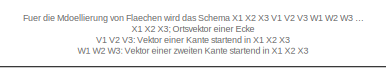
[diagram: root canvas - part 1/3, top center region]
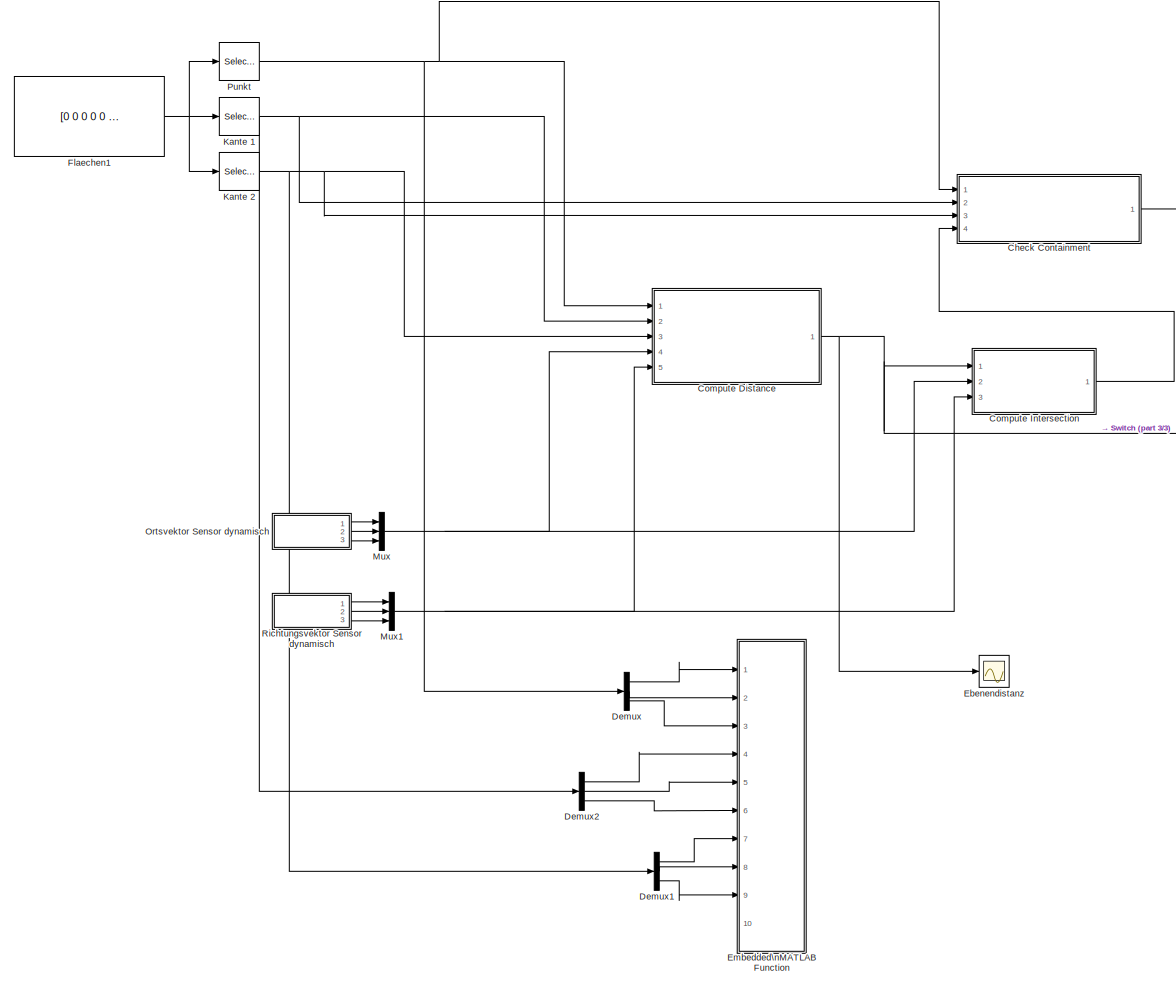
[diagram: root canvas - part 2/3, most of the canvas]
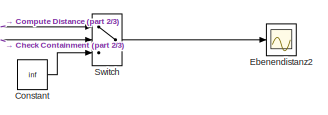
[diagram: root canvas - part 3/3, middle right region]
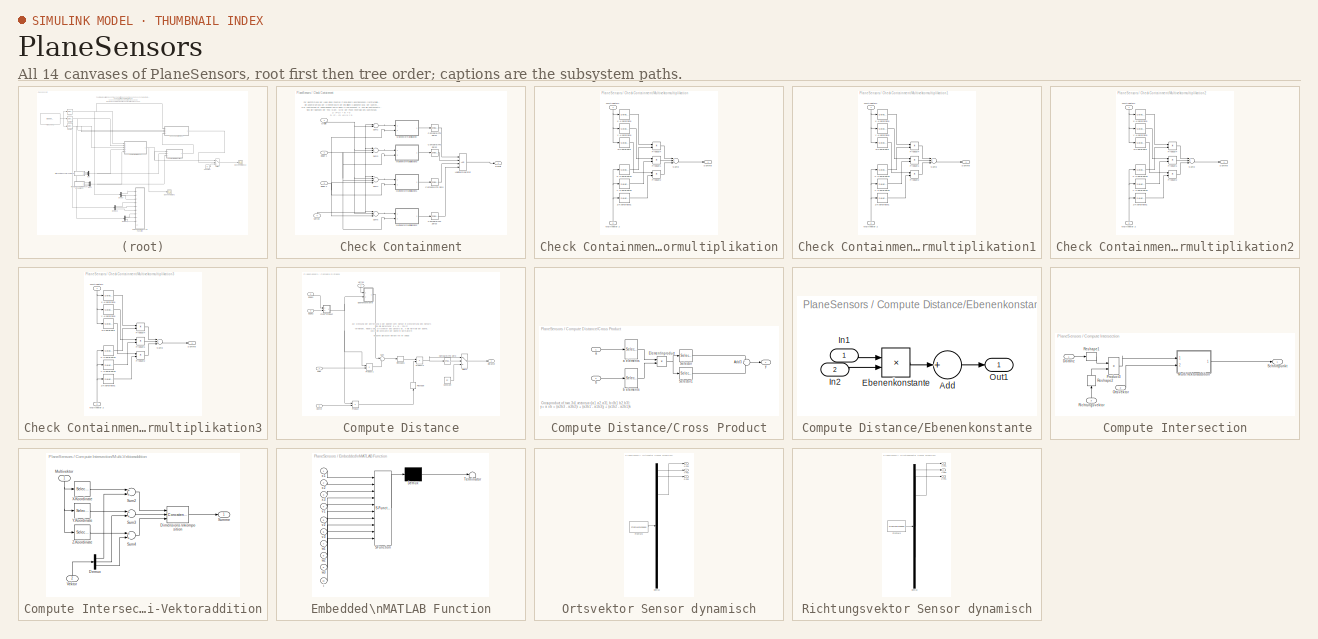
[diagram: thumbnail index - all 14 canvases of the model, root first then tree order]
MODEL PlaneSensors
KIND model
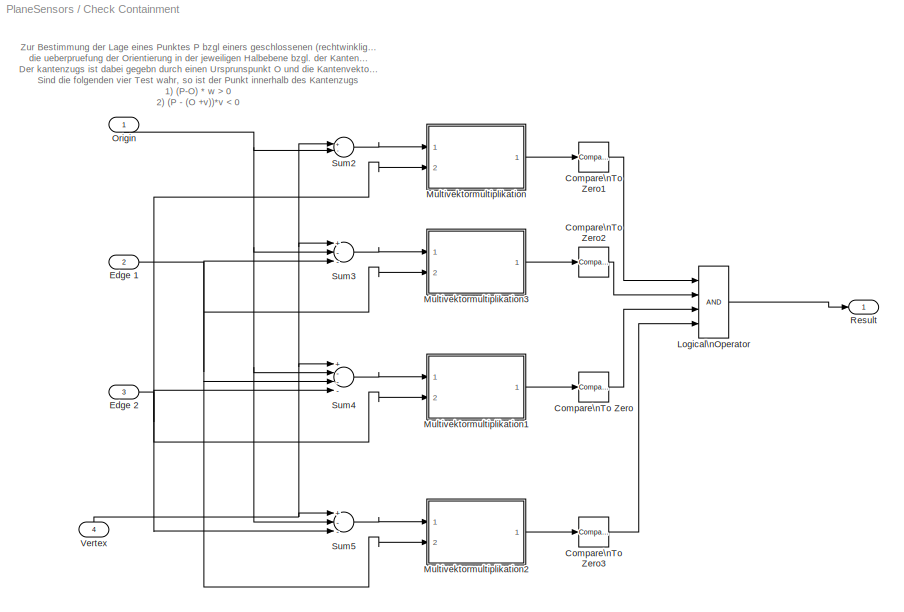
BLOCK [SubSystem] Check Containment
  FunctionWithSeparateData = off
  MaskHideContents = off
  MinAlgLoopOccurrences = off
  Opaque = off
  Ports = [4, 1]
  PropExecContextOutsideSubsystem = off
  RTWSystemCode = Auto
  RequestExecContextInheritance = off
  SID = 63
BLOCK [Reference] Check Containment/Compare\nTo Zero  REF=simulink/Logic and Bit\nOperations/Compare\nTo Zero
  FunctionWithSeparateData = off
  LogicOutDataTypeMode = uint8
  Ports = [1, 1]
  RTWMemSecDataConstants = Inherit from model
  RTWMemSecDataInternal = Inherit from model
  RTWMemSecDataParameters = Inherit from model
  RTWMemSecFuncExecute = Inherit from model
  RTWMemSecFuncInitTerm = Inherit from model
  SID = 48
  ShowPortLabels = FromPortIcon
  SourceBlock = simulink/Logic and Bit\nOperations/Compare\nTo Zero
  SourceType = Compare To Zero
  SystemSampleTime = -1
  ZeroCross = on
  relop = <
BLOCK [Reference] Check Containment/Compare\nTo Zero1  REF=simulink/Logic and Bit\nOperations/Compare\nTo Zero
  FunctionWithSeparateData = off
  LogicOutDataTypeMode = uint8
  Ports = [1, 1]
  RTWMemSecDataConstants = Inherit from model
  RTWMemSecDataInternal = Inherit from model
  RTWMemSecDataParameters = Inherit from model
  RTWMemSecFuncExecute = Inherit from model
  RTWMemSecFuncInitTerm = Inherit from model
  SID = 49
  ShowPortLabels = FromPortIcon
  SourceBlock = simulink/Logic and Bit\nOperations/Compare\nTo Zero
  SourceType = Compare To Zero
  SystemSampleTime = -1
  ZeroCross = on
  relop = >
BLOCK [Reference] Check Containment/Compare\nTo Zero2  REF=simulink/Logic and Bit\nOperations/Compare\nTo Zero
  FunctionWithSeparateData = off
  LogicOutDataTypeMode = uint8
  Ports = [1, 1]
  RTWMemSecDataConstants = Inherit from model
  RTWMemSecDataInternal = Inherit from model
  RTWMemSecDataParameters = Inherit from model
  RTWMemSecFuncExecute = Inherit from model
  RTWMemSecFuncInitTerm = Inherit from model
  SID = 50
  ShowPortLabels = FromPortIcon
  SourceBlock = simulink/Logic and Bit\nOperations/Compare\nTo Zero
  SourceType = Compare To Zero
  SystemSampleTime = -1
  ZeroCross = on
  relop = <
BLOCK [Reference] Check Containment/Compare\nTo Zero3  REF=simulink/Logic and Bit\nOperations/Compare\nTo Zero
  FunctionWithSeparateData = off
  LogicOutDataTypeMode = uint8
  Ports = [1, 1]
  RTWMemSecDataConstants = Inherit from model
  RTWMemSecDataInternal = Inherit from model
  RTWMemSecDataParameters = Inherit from model
  RTWMemSecFuncExecute = Inherit from model
  RTWMemSecFuncInitTerm = Inherit from model
  SID = 51
  ShowPortLabels = FromPortIcon
  SourceBlock = simulink/Logic and Bit\nOperations/Compare\nTo Zero
  SourceType = Compare To Zero
  SystemSampleTime = -1
  ZeroCross = on
  relop = >
BLOCK [Inport] Check Containment/Edge 1
  IconDisplay = Port number
  Port = 2
  SID = 66
BLOCK [Inport] Check Containment/Edge 2
  IconDisplay = Port number
  Port = 3
  SID = 67
BLOCK [Logic] Check Containment/Logical\nOperator
  AllPortsSameDT = off
  Inputs = 4
  LogicDataType = fixdt(0, 8)
  OutDataTypeMode = boolean
  OutDataTypeStr = boolean
  Ports = [4, 1]
  SID = 52
BLOCK [SubSystem] Check Containment/Multivektormultiplikation
  FunctionWithSeparateData = off
  MaskHideContents = off
  MinAlgLoopOccurrences = off
  Opaque = off
  Ports = [2, 1]
  PropExecContextOutsideSubsystem = off
  RTWSystemCode = Auto
  RequestExecContextInheritance = off
  SID = 172
BLOCK [Inport] Check Containment/Multivektormultiplikation/Mulitvektor 2
  IconDisplay = Port number
  Port = 2
  SID = 174
BLOCK [Inport] Check Containment/Multivektormultiplikation/Multivektor1
  IconDisplay = Port number
  SID = 173
BLOCK [Product] Check Containment/Multivektormultiplikation/Product1
  InputSameDT = off
  OutDataType = fixdt(1, 16)
  OutDataTypeMode = Inherit via internal rule
  OutDataTypeStr = Inherit: Inherit via internal rule
  OutScaling = 2^0
  Ports = [2, 1]
  SID = 189
  SaturateOnIntegerOverflow = off
BLOCK [Product] Check Containment/Multivektormultiplikation/Product2
  InputSameDT = off
  OutDataType = fixdt(1, 16)
  OutDataTypeMode = Inherit via internal rule
  OutDataTypeStr = Inherit: Inherit via internal rule
  OutScaling = 2^0
  Ports = [2, 1]
  SID = 190
  SaturateOnIntegerOverflow = off
BLOCK [Product] Check Containment/Multivektormultiplikation/Product4
  InputSameDT = off
  OutDataType = fixdt(1, 16)
  OutDataTypeMode = Inherit via internal rule
  OutDataTypeStr = Inherit: Inherit via internal rule
  OutScaling = 2^0
  Ports = [2, 1]
  SID = 188
  SaturateOnIntegerOverflow = off
BLOCK [Sum] Check Containment/Multivektormultiplikation/Sum3
  InputSameDT = off
  Inputs = 3
  OutDataType = fixdt(1, 16)
  OutDataTypeMode = Inherit via internal rule
  OutDataTypeStr = Inherit: Inherit via internal rule
  OutScaling = 2^0
  Ports = [3, 1]
  SID = 178
  SaturateOnIntegerOverflow = off
BLOCK [Outport] Check Containment/Multivektormultiplikation/Summe
  IconDisplay = Port number
  SID = 183
BLOCK [Selector] Check Containment/Multivektormultiplikation/X-Koordinate
  IndexOptions = Select all,Index vector (dialog)
  Indices = [1],[1]
  InputPortWidth = 3
  NumberOfDimensions = 2
  OutputSizes = 1,1
  Ports = [1, 1]
  SID = 180
BLOCK [Selector] Check Containment/Multivektormultiplikation/X-Koordinate1
  IndexOptions = Select all,Index vector (dialog)
  Indices = [1],[1]
  InputPortWidth = 3
  NumberOfDimensions = 2
  OutputSizes = 1,1
  Ports = [1, 1]
  SID = 184
BLOCK [Selector] Check Containment/Multivektormultiplikation/Y-Koordinate
  IndexOptions = Select all,Index vector (dialog)
  Indices = [2],[2]
  InputPortWidth = 3
  NumberOfDimensions = 2
  OutputSizes = 1,1
  Ports = [1, 1]
  SID = 181
BLOCK [Selector] Check Containment/Multivektormultiplikation/Y-Koordinate1
  IndexOptions = Select all,Index vector (dialog)
  Indices = [2],[2]
  InputPortWidth = 3
  NumberOfDimensions = 2
  OutputSizes = 1,1
  Ports = [1, 1]
  SID = 185
BLOCK [Selector] Check Containment/Multivektormultiplikation/Z-Koordinate
  IndexOptions = Select all,Index vector (dialog)
  Indices = [3],[3]
  InputPortWidth = 3
  NumberOfDimensions = 2
  OutputSizes = 1,1
  Ports = [1, 1]
  SID = 182
BLOCK [Selector] Check Containment/Multivektormultiplikation/Z-Koordinate1
  IndexOptions = Select all,Index vector (dialog)
  Indices = [3],[3]
  InputPortWidth = 3
  NumberOfDimensions = 2
  OutputSizes = 1,1
  Ports = [1, 1]
  SID = 186
BLOCK [SubSystem] Check Containment/Multivektormultiplikation1
  FunctionWithSeparateData = off
  MaskHideContents = off
  MinAlgLoopOccurrences = off
  Opaque = off
  Ports = [2, 1]
  PropExecContextOutsideSubsystem = off
  RTWSystemCode = Auto
  RequestExecContextInheritance = off
  SID = 191
BLOCK [Inport] Check Containment/Multivektormultiplikation1/Mulitvektor 2
  IconDisplay = Port number
  Port = 2
  SID = 193
BLOCK [Inport] Check Containment/Multivektormultiplikation1/Multivektor1
  IconDisplay = Port number
  SID = 192
BLOCK [Product] Check Containment/Multivektormultiplikation1/Product1
  InputSameDT = off
  OutDataType = fixdt(1, 16)
  OutDataTypeMode = Inherit via internal rule
  OutDataTypeStr = Inherit: Inherit via internal rule
  OutScaling = 2^0
  Ports = [2, 1]
  SID = 194
  SaturateOnIntegerOverflow = off
BLOCK [Product] Check Containment/Multivektormultiplikation1/Product2
  InputSameDT = off
  OutDataType = fixdt(1, 16)
  OutDataTypeMode = Inherit via internal rule
  OutDataTypeStr = Inherit: Inherit via internal rule
  OutScaling = 2^0
  Ports = [2, 1]
  SID = 195
  SaturateOnIntegerOverflow = off
BLOCK [Product] Check Containment/Multivektormultiplikation1/Product4
  InputSameDT = off
  OutDataType = fixdt(1, 16)
  OutDataTypeMode = Inherit via internal rule
  OutDataTypeStr = Inherit: Inherit via internal rule
  OutScaling = 2^0
  Ports = [2, 1]
  SID = 196
  SaturateOnIntegerOverflow = off
BLOCK [Sum] Check Containment/Multivektormultiplikation1/Sum3
  InputSameDT = off
  Inputs = 3
  OutDataType = fixdt(1, 16)
  OutDataTypeMode = Inherit via internal rule
  OutDataTypeStr = Inherit: Inherit via internal rule
  OutScaling = 2^0
  Ports = [3, 1]
  SID = 197
  SaturateOnIntegerOverflow = off
BLOCK [Outport] Check Containment/Multivektormultiplikation1/Summe
  IconDisplay = Port number
  SID = 204
BLOCK [Selector] Check Containment/Multivektormultiplikation1/X-Koordinate
  IndexOptions = Select all,Index vector (dialog)
  Indices = [1],[1]
  InputPortWidth = 3
  NumberOfDimensions = 2
  OutputSizes = 1,1
  Ports = [1, 1]
  SID = 198
BLOCK [Selector] Check Containment/Multivektormultiplikation1/X-Koordinate1
  IndexOptions = Select all,Index vector (dialog)
  Indices = [1],[1]
  InputPortWidth = 3
  NumberOfDimensions = 2
  OutputSizes = 1,1
  Ports = [1, 1]
  SID = 199
BLOCK [Selector] Check Containment/Multivektormultiplikation1/Y-Koordinate
  IndexOptions = Select all,Index vector (dialog)
  Indices = [2],[2]
  InputPortWidth = 3
  NumberOfDimensions = 2
  OutputSizes = 1,1
  Ports = [1, 1]
  SID = 200
BLOCK [Selector] Check Containment/Multivektormultiplikation1/Y-Koordinate1
  IndexOptions = Select all,Index vector (dialog)
  Indices = [2],[2]
  InputPortWidth = 3
  NumberOfDimensions = 2
  OutputSizes = 1,1
  Ports = [1, 1]
  SID = 201
BLOCK [Selector] Check Containment/Multivektormultiplikation1/Z-Koordinate
  IndexOptions = Select all,Index vector (dialog)
  Indices = [3],[3]
  InputPortWidth = 3
  NumberOfDimensions = 2
  OutputSizes = 1,1
  Ports = [1, 1]
  SID = 202
BLOCK [Selector] Check Containment/Multivektormultiplikation1/Z-Koordinate1
  IndexOptions = Select all,Index vector (dialog)
  Indices = [3],[3]
  InputPortWidth = 3
  NumberOfDimensions = 2
  OutputSizes = 1,1
  Ports = [1, 1]
  SID = 203
BLOCK [SubSystem] Check Containment/Multivektormultiplikation2
  FunctionWithSeparateData = off
  MaskHideContents = off
  MinAlgLoopOccurrences = off
  Opaque = off
  Ports = [2, 1]
  PropExecContextOutsideSubsystem = off
  RTWSystemCode = Auto
  RequestExecContextInheritance = off
  SID = 205
BLOCK [Inport] Check Containment/Multivektormultiplikation2/Mulitvektor 2
  IconDisplay = Port number
  Port = 2
  SID = 207
BLOCK [Inport] Check Containment/Multivektormultiplikation2/Multivektor1
  IconDisplay = Port number
  SID = 206
BLOCK [Product] Check Containment/Multivektormultiplikation2/Product1
  InputSameDT = off
  OutDataType = fixdt(1, 16)
  OutDataTypeMode = Inherit via internal rule
  OutDataTypeStr = Inherit: Inherit via internal rule
  OutScaling = 2^0
  Ports = [2, 1]
  SID = 208
  SaturateOnIntegerOverflow = off
BLOCK [Product] Check Containment/Multivektormultiplikation2/Product2
  InputSameDT = off
  OutDataType = fixdt(1, 16)
  OutDataTypeMode = Inherit via internal rule
  OutDataTypeStr = Inherit: Inherit via internal rule
  OutScaling = 2^0
  Ports = [2, 1]
  SID = 209
  SaturateOnIntegerOverflow = off
BLOCK [Product] Check Containment/Multivektormultiplikation2/Product4
  InputSameDT = off
  OutDataType = fixdt(1, 16)
  OutDataTypeMode = Inherit via internal rule
  OutDataTypeStr = Inherit: Inherit via internal rule
  OutScaling = 2^0
  Ports = [2, 1]
  SID = 210
  SaturateOnIntegerOverflow = off
BLOCK [Sum] Check Containment/Multivektormultiplikation2/Sum3
  InputSameDT = off
  Inputs = 3
  OutDataType = fixdt(1, 16)
  OutDataTypeMode = Inherit via internal rule
  OutDataTypeStr = Inherit: Inherit via internal rule
  OutScaling = 2^0
  Ports = [3, 1]
  SID = 211
  SaturateOnIntegerOverflow = off
BLOCK [Outport] Check Containment/Multivektormultiplikation2/Summe
  IconDisplay = Port number
  SID = 218
BLOCK [Selector] Check Containment/Multivektormultiplikation2/X-Koordinate
  IndexOptions = Select all,Index vector (dialog)
  Indices = [1],[1]
  InputPortWidth = 3
  NumberOfDimensions = 2
  OutputSizes = 1,1
  Ports = [1, 1]
  SID = 212
BLOCK [Selector] Check Containment/Multivektormultiplikation2/X-Koordinate1
  IndexOptions = Select all,Index vector (dialog)
  Indices = [1],[1]
  InputPortWidth = 3
  NumberOfDimensions = 2
  OutputSizes = 1,1
  Ports = [1, 1]
  SID = 213
BLOCK [Selector] Check Containment/Multivektormultiplikation2/Y-Koordinate
  IndexOptions = Select all,Index vector (dialog)
  Indices = [2],[2]
  InputPortWidth = 3
  NumberOfDimensions = 2
  OutputSizes = 1,1
  Ports = [1, 1]
  SID = 214
BLOCK [Selector] Check Containment/Multivektormultiplikation2/Y-Koordinate1
  IndexOptions = Select all,Index vector (dialog)
  Indices = [2],[2]
  InputPortWidth = 3
  NumberOfDimensions = 2
  OutputSizes = 1,1
  Ports = [1, 1]
  SID = 215
BLOCK [Selector] Check Containment/Multivektormultiplikation2/Z-Koordinate
  IndexOptions = Select all,Index vector (dialog)
  Indices = [3],[3]
  InputPortWidth = 3
  NumberOfDimensions = 2
  OutputSizes = 1,1
  Ports = [1, 1]
  SID = 216
BLOCK [Selector] Check Containment/Multivektormultiplikation2/Z-Koordinate1
  IndexOptions = Select all,Index vector (dialog)
  Indices = [3],[3]
  InputPortWidth = 3
  NumberOfDimensions = 2
  OutputSizes = 1,1
  Ports = [1, 1]
  SID = 217
BLOCK [SubSystem] Check Containment/Multivektormultiplikation3
  FunctionWithSeparateData = off
  MaskHideContents = off
  MinAlgLoopOccurrences = off
  Opaque = off
  Ports = [2, 1]
  PropExecContextOutsideSubsystem = off
  RTWSystemCode = Auto
  RequestExecContextInheritance = off
  SID = 219
BLOCK [Inport] Check Containment/Multivektormultiplikation3/Mulitvektor 2
  IconDisplay = Port number
  Port = 2
  SID = 221
BLOCK [Inport] Check Containment/Multivektormultiplikation3/Multivektor1
  IconDisplay = Port number
  SID = 220
BLOCK [Product] Check Containment/Multivektormultiplikation3/Product1
  InputSameDT = off
  OutDataType = fixdt(1, 16)
  OutDataTypeMode = Inherit via internal rule
  OutDataTypeStr = Inherit: Inherit via internal rule
  OutScaling = 2^0
  Ports = [2, 1]
  SID = 222
  SaturateOnIntegerOverflow = off
BLOCK [Product] Check Containment/Multivektormultiplikation3/Product2
  InputSameDT = off
  OutDataType = fixdt(1, 16)
  OutDataTypeMode = Inherit via internal rule
  OutDataTypeStr = Inherit: Inherit via internal rule
  OutScaling = 2^0
  Ports = [2, 1]
  SID = 223
  SaturateOnIntegerOverflow = off
BLOCK [Product] Check Containment/Multivektormultiplikation3/Product4
  InputSameDT = off
  OutDataType = fixdt(1, 16)
  OutDataTypeMode = Inherit via internal rule
  OutDataTypeStr = Inherit: Inherit via internal rule
  OutScaling = 2^0
  Ports = [2, 1]
  SID = 224
  SaturateOnIntegerOverflow = off
BLOCK [Sum] Check Containment/Multivektormultiplikation3/Sum3
  InputSameDT = off
  Inputs = 3
  OutDataType = fixdt(1, 16)
  OutDataTypeMode = Inherit via internal rule
  OutDataTypeStr = Inherit: Inherit via internal rule
  OutScaling = 2^0
  Ports = [3, 1]
  SID = 225
  SaturateOnIntegerOverflow = off
BLOCK [Outport] Check Containment/Multivektormultiplikation3/Summe
  IconDisplay = Port number
  SID = 232
BLOCK [Selector] Check Containment/Multivektormultiplikation3/X-Koordinate
  IndexOptions = Select all,Index vector (dialog)
  Indices = [1],[1]
  InputPortWidth = 3
  NumberOfDimensions = 2
  OutputSizes = 1,1
  Ports = [1, 1]
  SID = 226
BLOCK [Selector] Check Containment/Multivektormultiplikation3/X-Koordinate1
  IndexOptions = Select all,Index vector (dialog)
  Indices = [1],[1]
  InputPortWidth = 3
  NumberOfDimensions = 2
  OutputSizes = 1,1
  Ports = [1, 1]
  SID = 227
BLOCK [Selector] Check Containment/Multivektormultiplikation3/Y-Koordinate
  IndexOptions = Select all,Index vector (dialog)
  Indices = [2],[2]
  InputPortWidth = 3
  NumberOfDimensions = 2
  OutputSizes = 1,1
  Ports = [1, 1]
  SID = 228
BLOCK [Selector] Check Containment/Multivektormultiplikation3/Y-Koordinate1
  IndexOptions = Select all,Index vector (dialog)
  Indices = [2],[2]
  InputPortWidth = 3
  NumberOfDimensions = 2
  OutputSizes = 1,1
  Ports = [1, 1]
  SID = 229
BLOCK [Selector] Check Containment/Multivektormultiplikation3/Z-Koordinate
  IndexOptions = Select all,Index vector (dialog)
  Indices = [3],[3]
  InputPortWidth = 3
  NumberOfDimensions = 2
  OutputSizes = 1,1
  Ports = [1, 1]
  SID = 230
BLOCK [Selector] Check Containment/Multivektormultiplikation3/Z-Koordinate1
  IndexOptions = Select all,Index vector (dialog)
  Indices = [3],[3]
  InputPortWidth = 3
  NumberOfDimensions = 2
  OutputSizes = 1,1
  Ports = [1, 1]
  SID = 231
BLOCK [Inport] Check Containment/Origin
  IconDisplay = Port number
  SID = 64
BLOCK [Outport] Check Containment/Result
  IconDisplay = Port number
  SID = 65
BLOCK [Sum] Check Containment/Sum2
  InputSameDT = off
  Inputs = +-
  OutDataType = fixdt(1, 16)
  OutDataTypeMode = Inherit via internal rule
  OutDataTypeStr = Inherit: Inherit via internal rule
  OutScaling = 2^0
  Ports = [2, 1]
  SID = 40
  SaturateOnIntegerOverflow = off
BLOCK [Sum] Check Containment/Sum3
  InputSameDT = off
  Inputs = +--
  OutDataType = fixdt(1, 16)
  OutDataTypeMode = Inherit via internal rule
  OutDataTypeStr = Inherit: Inherit via internal rule
  OutScaling = 2^0
  Ports = [3, 1]
  SID = 41
  SaturateOnIntegerOverflow = off
BLOCK [Sum] Check Containment/Sum4
  InputSameDT = off
  Inputs = +---
  OutDataType = fixdt(1, 16)
  OutDataTypeMode = Inherit via internal rule
  OutDataTypeStr = Inherit: Inherit via internal rule
  OutScaling = 2^0
  Ports = [4, 1]
  SID = 42
  SaturateOnIntegerOverflow = off
BLOCK [Sum] Check Containment/Sum5
  InputSameDT = off
  Inputs = +--
  OutDataType = fixdt(1, 16)
  OutDataTypeMode = Inherit via internal rule
  OutDataTypeStr = Inherit: Inherit via internal rule
  OutScaling = 2^0
  Ports = [3, 1]
  SID = 43
  SaturateOnIntegerOverflow = off
BLOCK [Inport] Check Containment/Vertex
  IconDisplay = Port number
  Port = 4
  SID = 68
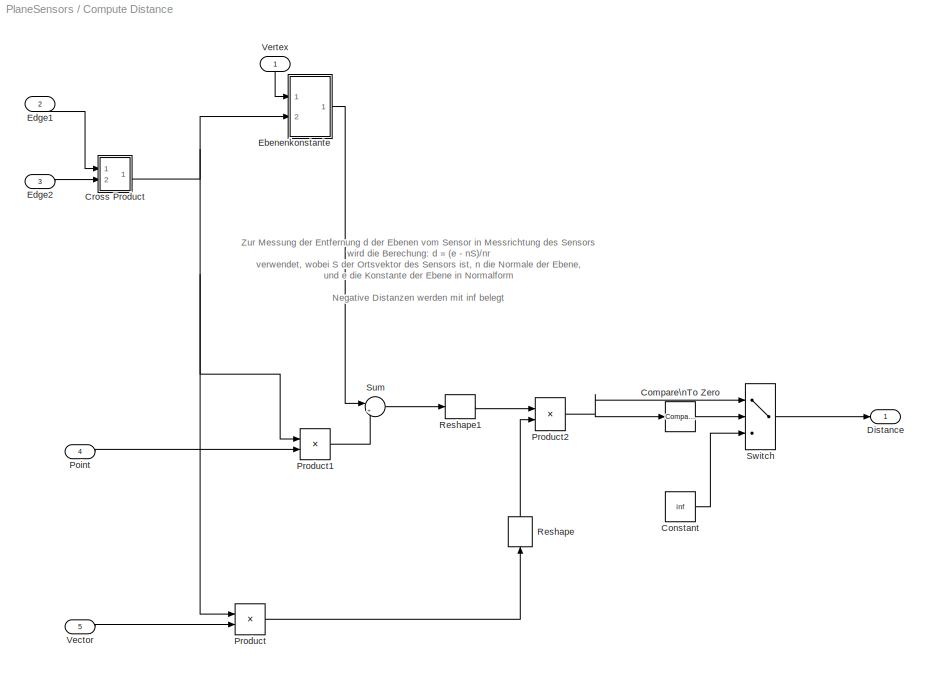
BLOCK [SubSystem] Compute Distance
  FunctionWithSeparateData = off
  MaskHideContents = off
  MinAlgLoopOccurrences = off
  Opaque = off
  Ports = [5, 1]
  PropExecContextOutsideSubsystem = off
  RTWSystemCode = Auto
  RequestExecContextInheritance = off
  SID = 79
BLOCK [Reference] Compute Distance/Compare\nTo Zero  REF=simulink/Logic and Bit\nOperations/Compare\nTo Zero
  FunctionWithSeparateData = off
  LogicOutDataTypeMode = uint8
  Ports = [1, 1]
  RTWMemSecDataConstants = Inherit from model
  RTWMemSecDataInternal = Inherit from model
  RTWMemSecDataParameters = Inherit from model
  RTWMemSecFuncExecute = Inherit from model
  RTWMemSecFuncInitTerm = Inherit from model
  SID = 237
  ShowPortLabels = FromPortIcon
  SourceBlock = simulink/Logic and Bit\nOperations/Compare\nTo Zero
  SourceType = Compare To Zero
  SystemSampleTime = -1
  ZeroCross = on
  relop = >=
BLOCK [Constant] Compute Distance/Constant
  OutDataType = fixdt(1, 16)
  OutScaling = 2^0
  SID = 235
  Value = inf
BLOCK [SubSystem] Compute Distance/Cross Product
  AncestorBlock = vrlib/Utilities/Cross Product
  FunctionWithSeparateData = off
  MaskDescription = Cross product of two 3x1 vectors a=[a1 a2 a3], b=[b1 b2 b3].\ny = a x b = (a2b3 - a3b2)i + (a3b1 - a1b3)j + (a1b2 - a2b1)k
  MaskDisplay = plot([0.2 0.8],[0.8 0.2]);\nplot([0.2 0.8],[0.2 0.8]);
  MaskHelp = helpview(fullfile(docroot, 'toolbox', 'sl3d', 'sl3d.map'), 'vr_crossproduct');
  MaskHideContents = off
  MaskIconFrame = on
  MaskIconOpaque = on
  MaskIconRotate = none
  MaskIconUnits = normalized
  MaskPortRotate = default
  MaskType = Cross Product
  MinAlgLoopOccurrences = off
  Opaque = off
  Ports = [2, 1]
  PropExecContextOutsideSubsystem = off
  RTWSystemCode = Auto
  RequestExecContextInheritance = off
  SID = 30
BLOCK [Sum] Compute Distance/Cross Product/Add3
  IconShape = round
  InputSameDT = off
  Inputs = +-
  OutDataType = sfix(16)
  OutDataTypeMode = Inherit via internal rule
  OutDataTypeStr = Inherit: Inherit via internal rule
  OutScaling = 2^-10
  Ports = [2, 1]
  SID = 9
  SaturateOnIntegerOverflow = off
BLOCK [Product] Compute Distance/Cross Product/Element\nproduct
  InputSameDT = off
  OutDataType = sfix(16)
  OutDataTypeMode = Inherit via internal rule
  OutDataTypeStr = Inherit: Inherit via internal rule
  OutScaling = 2^0
  Ports = [2, 1]
  SID = 11
  SaturateOnIntegerOverflow = off
BLOCK [Selector] Compute Distance/Cross Product/Selector
  IndexOptions = Select all,Index vector (dialog)
  Indices = [1 3],[1 2 3]
  NumberOfDimensions = 2
  OutputSizes = 1,1
  Ports = [1, 1]
  SID = 15
BLOCK [Selector] Compute Distance/Cross Product/Selector1
  IndexOptions = Select all,Index vector (dialog)
  Indices = [3 6],[4 5 6]
  NumberOfDimensions = 2
  OutputSizes = 1,1
  Ports = [1, 1]
  SID = 16
BLOCK [Inport] Compute Distance/Cross Product/a
  IconDisplay = Port number
  OutDataType = sfix(16)
  OutScaling = 2^0
  SID = 7
BLOCK [Selector] Compute Distance/Cross Product/a elements
  IndexOptions = Select all,Index vector (dialog)
  Indices = [2 3 1 3 1 2],[2 3 1 3 1 2]
  InputPortWidth = 3
  NumberOfDimensions = 2
  OutputSizes = 1,1
  Ports = [1, 1]
  SID = 12
BLOCK [Inport] Compute Distance/Cross Product/b
  IconDisplay = Port number
  OutDataType = sfix(16)
  OutScaling = 2^0
  Port = 2
  SID = 8
BLOCK [Selector] Compute Distance/Cross Product/b elements
  IndexOptions = Select all,Index vector (dialog)
  Indices = [3 1 2 2 3 1],[3 1 2 2 3 1]
  InputPortWidth = 3
  NumberOfDimensions = 2
  OutputSizes = 1,1
  Ports = [1, 1]
  SID = 13
BLOCK [Outport] Compute Distance/Cross Product/y
  IconDisplay = Port number
  OutDataType = sfix(16)
  OutScaling = 2^0
  SID = 14
BLOCK [Outport] Compute Distance/Distance
  IconDisplay = Port number
  SID = 83
BLOCK [SubSystem] Compute Distance/Ebenenkonstante
  FunctionWithSeparateData = off
  MaskHideContents = off
  MinAlgLoopOccurrences = off
  Opaque = off
  Ports = [2, 1]
  PropExecContextOutsideSubsystem = off
  RTWSystemCode = Auto
  RequestExecContextInheritance = off
  SID = 34
BLOCK [Sum] Compute Distance/Ebenenkonstante/Add
  CollapseDim = 2
  CollapseMode = Specified dimension
  InputSameDT = off
  Inputs = +
  OutDataType = fixdt(1, 16)
  OutDataTypeMode = Inherit via internal rule
  OutDataTypeStr = Inherit: Inherit via internal rule
  OutScaling = 2^-10
  Ports = [1, 1]
  SID = 33
  SaturateOnIntegerOverflow = off
BLOCK [Product] Compute Distance/Ebenenkonstante/Ebenenkonstante
  InputSameDT = off
  OutDataType = fixdt(1, 16)
  OutDataTypeMode = Inherit via internal rule
  OutDataTypeStr = Inherit: Inherit via internal rule
  OutScaling = 2^0
  Ports = [2, 1]
  SID = 21
  SaturateOnIntegerOverflow = off
BLOCK [Inport] Compute Distance/Ebenenkonstante/In1
  IconDisplay = Port number
  SID = 35
BLOCK [Inport] Compute Distance/Ebenenkonstante/In2
  IconDisplay = Port number
  Port = 2
  SID = 37
BLOCK [Outport] Compute Distance/Ebenenkonstante/Out1
  IconDisplay = Port number
  SID = 36
BLOCK [Inport] Compute Distance/Edge1
  IconDisplay = Port number
  Port = 2
  SID = 81
BLOCK [Inport] Compute Distance/Edge2
  IconDisplay = Port number
  Port = 3
  SID = 82
BLOCK [Inport] Compute Distance/Point
  IconDisplay = Port number
  Port = 4
  SID = 84
BLOCK [Product] Compute Distance/Product
  InputSameDT = off
  Multiplication = Matrix(*)
  OutDataType = fixdt(1, 16)
  OutDataTypeMode = Inherit via internal rule
  OutDataTypeStr = Inherit: Inherit via internal rule
  OutScaling = 2^0
  Ports = [2, 1]
  SID = 3
  SaturateOnIntegerOverflow = off
BLOCK [Product] Compute Distance/Product1
  InputSameDT = off
  Multiplication = Matrix(*)
  OutDataType = fixdt(1, 16)
  OutDataTypeMode = Inherit via internal rule
  OutDataTypeStr = Inherit: Inherit via internal rule
  OutScaling = 2^0
  Ports = [2, 1]
  SID = 8
  SaturateOnIntegerOverflow = off
BLOCK [Product] Compute Distance/Product2
  InputSameDT = off
  Inputs = */
  OutDataType = fixdt(1, 16)
  OutDataTypeMode = Inherit via internal rule
  OutDataTypeStr = Inherit: Inherit via internal rule
  OutScaling = 2^0
  Ports = [2, 1]
  SID = 10
  SaturateOnIntegerOverflow = off
BLOCK [Reshape] Compute Distance/Reshape
  Ports = [1, 1]
  SID = 116
BLOCK [Reshape] Compute Distance/Reshape1
  Ports = [1, 1]
  SID = 117
BLOCK [Sum] Compute Distance/Sum
  IconShape = round
  InputSameDT = off
  Inputs = |+-
  OutDataType = fixdt(1, 16)
  OutDataTypeMode = Inherit via internal rule
  OutDataTypeStr = Inherit: Inherit via internal rule
  OutScaling = 2^0
  Ports = [2, 1]
  SID = 9
  SaturateOnIntegerOverflow = off
BLOCK [Switch] Compute Distance/Switch
  Criteria = u2 ~= 0
  InputSameDT = off
  OutDataType = fixdt(1, 16)
  OutScaling = 2^0
  SID = 236
  SaturateOnIntegerOverflow = off
BLOCK [Inport] Compute Distance/Vector
  IconDisplay = Port number
  Port = 5
  SID = 85
BLOCK [Inport] Compute Distance/Vertex
  IconDisplay = Port number
  SID = 80
BLOCK [SubSystem] Compute Intersection
  FunctionWithSeparateData = off
  MaskHideContents = off
  MinAlgLoopOccurrences = off
  Opaque = off
  Ports = [3, 1]
  PropExecContextOutsideSubsystem = off
  RTWSystemCode = Auto
  RequestExecContextInheritance = off
  SID = 139
BLOCK [Inport] Compute Intersection/Distanz
  IconDisplay = Port number
  SID = 140
BLOCK [SubSystem] Compute Intersection/Multi-Vektoraddition
  FunctionWithSeparateData = off
  MaskHideContents = off
  MinAlgLoopOccurrences = off
  Opaque = off
  Ports = [2, 1]
  PropExecContextOutsideSubsystem = off
  RTWSystemCode = Auto
  RequestExecContextInheritance = off
  SID = 135
BLOCK [Demux] Compute Intersection/Multi-Vektoraddition/Demux
  DisplayOption = bar
  Outputs = 3
  Ports = [1, 3]
  SID = 151
BLOCK [Concatenate] Compute Intersection/Multi-Vektoraddition/Dimensions-\nkomposition
  ConcatenateDimension = 2
  Mode = Multidimensional array
  NumInputs = 3
  Ports = [3, 1]
  SID = 125
BLOCK [Inport] Compute Intersection/Multi-Vektoraddition/Multivektor
  IconDisplay = Port number
  SID = 136
BLOCK [Sum] Compute Intersection/Multi-Vektoraddition/Sum2
  InputSameDT = off
  OutDataType = fixdt(1, 16)
  OutDataTypeMode = Inherit via internal rule
  OutDataTypeStr = Inherit: Inherit via internal rule
  OutScaling = 2^0
  Ports = [2, 1]
  SID = 122
  SaturateOnIntegerOverflow = off
BLOCK [Sum] Compute Intersection/Multi-Vektoraddition/Sum3
  InputSameDT = off
  OutDataType = fixdt(1, 16)
  OutDataTypeMode = Inherit via internal rule
  OutDataTypeStr = Inherit: Inherit via internal rule
  OutScaling = 2^0
  Ports = [2, 1]
  SID = 123
  SaturateOnIntegerOverflow = off
BLOCK [Sum] Compute Intersection/Multi-Vektoraddition/Sum4
  InputSameDT = off
  OutDataType = fixdt(1, 16)
  OutDataTypeMode = Inherit via internal rule
  OutDataTypeStr = Inherit: Inherit via internal rule
  OutScaling = 2^0
  Ports = [2, 1]
  SID = 124
  SaturateOnIntegerOverflow = off
BLOCK [Outport] Compute Intersection/Multi-Vektoraddition/Summe
  IconDisplay = Port number
  SID = 137
BLOCK [Inport] Compute Intersection/Multi-Vektoraddition/Vektor
  IconDisplay = Port number
  Port = 2
  SID = 138
BLOCK [Selector] Compute Intersection/Multi-Vektoraddition/X-Koordinate
  IndexOptions = Select all,Index vector (dialog)
  Indices = [1],[1]
  InputPortWidth = 3
  NumberOfDimensions = 2
  OutputSizes = 1,1
  Ports = [1, 1]
  SID = 121
BLOCK [Selector] Compute Intersection/Multi-Vektoraddition/Y-Koordinate
  IndexOptions = Select all,Index vector (dialog)
  Indices = [2],[2]
  InputPortWidth = 3
  NumberOfDimensions = 2
  OutputSizes = 1,1
  Ports = [1, 1]
  SID = 119
BLOCK [Selector] Compute Intersection/Multi-Vektoraddition/Z-Koordinate
  IndexOptions = Select all,Index vector (dialog)
  Indices = [3],[3]
  InputPortWidth = 3
  NumberOfDimensions = 2
  OutputSizes = 1,1
  Ports = [1, 1]
  SID = 120
BLOCK [Inport] Compute Intersection/Ortsvektor
  IconDisplay = Port number
  Port = 2
  SID = 142
BLOCK [Product] Compute Intersection/Product3
  InputSameDT = off
  Multiplication = Matrix(*)
  OutDataType = fixdt(1, 16)
  OutDataTypeMode = Inherit via internal rule
  OutDataTypeStr = Inherit: Inherit via internal rule
  OutScaling = 2^0
  Ports = [2, 1]
  SID = 39
  SaturateOnIntegerOverflow = off
BLOCK [Reshape] Compute Intersection/Reshape1
  OutputDimensionality = Column vector (2-D)
  Ports = [1, 1]
  SID = 71
BLOCK [Reshape] Compute Intersection/Reshape2
  OutputDimensionality = Row vector (2-D)
  Ports = [1, 1]
  SID = 72
BLOCK [Inport] Compute Intersection/Richtungsvektor
  IconDisplay = Port number
  Port = 3
  SID = 143
BLOCK [Outport] Compute Intersection/Schnittpunkt
  IconDisplay = Port number
  SID = 141
BLOCK [Constant] Constant
  OutDataType = fixdt(1, 16)
  OutScaling = 2^0
  SID = 54
  Value = inf
BLOCK [Demux] Demux
  DisplayOption = bar
  Outputs = 3
  Ports = [1, 3]
  SID = 246
BLOCK [Demux] Demux1
  DisplayOption = bar
  Outputs = 3
  Ports = [1, 3]
  SID = 247
BLOCK [Demux] Demux2
  DisplayOption = bar
  Outputs = 3
  Ports = [1, 3]
  SID = 248
BLOCK [Scope] Ebenendistanz
  DataFormat = StructureWithTime
  Floating = off
  NumInputPorts = 1
  Ports = [1]
  SID = 112
  SampleTime = 0
  YMax = 100
  YMin = 0
  ZoomMode = yonly
BLOCK [Scope] Ebenendistanz2
  DataFormat = StructureWithTime
  Floating = off
  NumInputPorts = 1
  Ports = [1]
  SID = 234
  SampleTime = 0
  SaveName = ScopeData2
  YMax = 100
  YMin = 0
  ZoomMode = yonly
BLOCK [SubSystem] Embedded\nMATLAB Function
  FunctionWithSeparateData = off
  MaskDescription = Embedded MATLAB block
  MaskDisplay = disp('newWall');
  MaskHideContents = off
  MaskIconFrame = on
  MaskIconOpaque = off
  MaskIconRotate = none
  MaskIconUnits = autoscale
  MaskPortRotate = default
  MaskSelfModifiable = on
  MaskType = Stateflow
  MinAlgLoopOccurrences = off
  Opaque = off
  PermitHierarchicalResolution = ExplicitOnly
  Ports = [10]
  PropExecContextOutsideSubsystem = off
  RTWSystemCode = Auto
  RequestExecContextInheritance = off
  SID = 245
  TreatAsAtomicUnit = on
BLOCK [Demux] Embedded\nMATLAB Function/ Demux 
  Outputs = 1
  Ports = [1, 1]
  SID = 15
BLOCK [S-Function] Embedded\nMATLAB Function/ SFunction 
  EnableBusSupport = off
  FunctionName = sf_sfun
  PortCounts = [10 1]
  Ports = [10, 1]
  SID = 14
  Tag = Stateflow S-Function PlaneSensors 2
BLOCK [Terminator] Embedded\nMATLAB Function/ Terminator 
  SID = 17
BLOCK [Inport] Embedded\nMATLAB Function/i
  IconDisplay = Port number
  Port = 10
  SID = 27
BLOCK [Inport] Embedded\nMATLAB Function/v1
  IconDisplay = Port number
  Port = 4
  SID = 20
BLOCK [Inport] Embedded\nMATLAB Function/v2
  IconDisplay = Port number
  Port = 5
  SID = 21
BLOCK [Inport] Embedded\nMATLAB Function/v3
  IconDisplay = Port number
  Port = 6
  SID = 22
BLOCK [Inport] Embedded\nMATLAB Function/w1
  IconDisplay = Port number
  Port = 7
  SID = 23
BLOCK [Inport] Embedded\nMATLAB Function/w2
  IconDisplay = Port number
  Port = 8
  SID = 24
BLOCK [Inport] Embedded\nMATLAB Function/w3
  IconDisplay = Port number
  Port = 9
  SID = 25
BLOCK [Inport] Embedded\nMATLAB Function/x1
  IconDisplay = Port number
  OutDataType = sfix(16)
  OutScaling = 2^0
  SID = 1
BLOCK [Inport] Embedded\nMATLAB Function/x2
  IconDisplay = Port number
  Port = 2
  SID = 18
BLOCK [Inport] Embedded\nMATLAB Function/x3
  IconDisplay = Port number
  Port = 3
  SID = 19
BLOCK [Constant] Flaechen1
  OutDataType = fixdt(1, 16)
  OutScaling = 2^0
  SID = 87
  Value = [0 0 0 0 0 2 0 3 0; 0 3 0 0 0 2 3 0 0; 1 0 0 0 0 2 0 2 0; 1 2 0 0 0 2 2 0 0]
  VectorParams1D = off
BLOCK [Selector] Kante 1
  IndexOptions = Select all,Index vector (dialog)
  Indices = [1 2 3],[4 5 6]
  InputPortWidth = 3
  NumberOfDimensions = 2
  OutputSizes = 1,1
  Ports = [1, 1]
  SID = 24
BLOCK [Selector] Kante 2
  IndexOptions = Select all,Index vector (dialog)
  Indices = [1 2 3],[7 8 9]
  InputPortWidth = 3
  NumberOfDimensions = 2
  OutputSizes = 1,1
  Ports = [1, 1]
  SID = 25
BLOCK [Mux] Mux
  DisplayOption = bar
  Inputs = 3
  Ports = [3, 1]
  SID = 102
BLOCK [Mux] Mux1
  DisplayOption = bar
  Inputs = 3
  Ports = [3, 1]
  SID = 113
BLOCK [SubSystem] Ortsvektor Sensor dynamisch
  ClipboardFcn = sigbuilder_block('clipboard');
  CloseFcn = sigbuilder_block('close');
  CopyFcn = sigbuilder_block('copy');
  DeleteFcn = sigbuilder_block('delete');
  FunctionWithSeparateData = off
  LoadFcn = sigbuilder_block('load');
  MaskCapabilities = slmaskedcaps(gcbh)
  MaskDescription = Sigbuilder GUI
  MaskDisplay = plot(0,0,100,100,[10,10,40,40,10],[80,20,20,80,80],[40,10],[50,50], [40,27,10],[65,72,56],[40,25,25,10],[28,28,43,43]);
  MaskHideContents = on
  MaskIconFrame = on
  MaskIconOpaque = off
  MaskIconRotate = port
  MaskIconUnits = autoscale
  MaskInitialization = if ~strcmp(get_param(bdroot(gcbh),'SimulationStatus'),'stopped') tuvar = sigbuilder_block('maskInit'); end
  MaskPortRotate = default
  MaskSelfModifiable = on
  MaskType = Sigbuilder block
  MinAlgLoopOccurrences = off
  ModelCloseFcn = sigbuilder_block('modelClose');
  NameChangeFcn = sigbuilder_block('namechange');
  Opaque = off
  OpenFcn = sigbuilder_block('open',[374.4 73.6 711.2 676 ]);
  Ports = [0, 3]
  PreSaveFcn = sigbuilder_block('preSave');
  PropExecContextOutsideSubsystem = off
  RTWSystemCode = Auto
  RequestExecContextInheritance = off
  SID = 97
  StartFcn = sigbuilder_block('start');
  StopFcn = sigbuilder_block('stop');
  Tag = STV Subsys
BLOCK [Demux] Ortsvektor Sensor dynamisch/Demux
  Outputs = 3
  Ports = [1, 3]
  SID = 98
  Tag = STV Demux
BLOCK [FromWorkspace] Ortsvektor Sensor dynamisch/FromWs
  SID = 99
  SampleTime = 0
  SigBuilderData = DataTag0
  Tag = STV FromWs
  VariableName = tuvar
  VnvData = DataTag1
  ZeroCross = on
BLOCK [Outport] Ortsvektor Sensor dynamisch/X-Pos
  IconDisplay = Port number
  OutDataType = fixdt(1, 16)
  OutScaling = 2^0
  SID = 100
  Tag = STV Outport
BLOCK [Outport] Ortsvektor Sensor dynamisch/Y-Pos
  IconDisplay = Port number
  Port = 2
  SID = 1
  Tag = STV Outport
BLOCK [Outport] Ortsvektor Sensor dynamisch/Z-Pos
  IconDisplay = Port number
  Port = 3
  SID = 2
  Tag = STV Outport
BLOCK [Selector] Punkt
  IndexOptions = Select all,Index vector (dialog)
  Indices = [1 2 3],[1 2 3]
  InputPortWidth = 3
  NumberOfDimensions = 2
  OutputSizes = 1,1
  Ports = [1, 1]
  SID = 23
BLOCK [SubSystem] Richtungsvektor Sensor dynamisch
  ClipboardFcn = sigbuilder_block('clipboard');
  CloseFcn = sigbuilder_block('close');
  CopyFcn = sigbuilder_block('copy');
  DeleteFcn = sigbuilder_block('delete');
  FunctionWithSeparateData = off
  LoadFcn = sigbuilder_block('load');
  MaskCapabilities = slmaskedcaps(gcbh)
  MaskDescription = Sigbuilder GUI
  MaskDisplay = plot(0,0,100,100,[10,10,40,40,10],[80,20,20,80,80],[40,10],[50,50], [40,27,10],[65,72,56],[40,25,25,10],[28,28,43,43]);
  MaskHideContents = on
  MaskIconFrame = on
  MaskIconOpaque = off
  MaskIconRotate = port
  MaskIconUnits = autoscale
  MaskInitialization = if ~strcmp(get_param(bdroot(gcbh),'SimulationStatus'),'stopped') tuvar = sigbuilder_block('maskInit'); end
  MaskPortRotate = default
  MaskSelfModifiable = on
  MaskType = Sigbuilder block
  MinAlgLoopOccurrences = off
  ModelCloseFcn = sigbuilder_block('modelClose');
  NameChangeFcn = sigbuilder_block('namechange');
  Opaque = off
  OpenFcn = sigbuilder_block('open',[387.2 247.2 590.4 480.8 ]);
  Ports = [0, 3]
  PreSaveFcn = sigbuilder_block('preSave');
  PropExecContextOutsideSubsystem = off
  RTWSystemCode = Auto
  RequestExecContextInheritance = off
  SID = 240
  StartFcn = sigbuilder_block('start');
  StopFcn = sigbuilder_block('stop');
  Tag = STV Subsys
BLOCK [Demux] Richtungsvektor Sensor dynamisch/Demux
  Outputs = 3
  Ports = [1, 3]
  SID = 98
  Tag = STV Demux
BLOCK [FromWorkspace] Richtungsvektor Sensor dynamisch/FromWs
  SID = 99
  SampleTime = 0
  SigBuilderData = DataTag2
  Tag = STV FromWs
  VariableName = tuvar
  VnvData = DataTag3
  ZeroCross = on
BLOCK [Outport] Richtungsvektor Sensor dynamisch/X-Pos
  IconDisplay = Port number
  OutDataType = fixdt(1, 16)
  OutScaling = 2^0
  SID = 100
  Tag = STV Outport
BLOCK [Outport] Richtungsvektor Sensor dynamisch/Y-Pos
  IconDisplay = Port number
  Port = 2
  SID = 1
  Tag = STV Outport
BLOCK [Outport] Richtungsvektor Sensor dynamisch/Z-Pos
  IconDisplay = Port number
  Port = 3
  SID = 2
  Tag = STV Outport
BLOCK [Switch] Switch
  Criteria = u2 ~= 0
  InputSameDT = off
  OutDataType = fixdt(1, 16)
  OutScaling = 2^0
  SID = 53
  SaturateOnIntegerOverflow = off
ANNOTATION (root): Fuer die Mdoellierung von Flaechen wird das Schema X1 X2 X3 V1 V2 V3 W1 W2 W3 verwendet mit:\nX1 X2 X3; Ortsvektor einer Ecke\nV1 V2 V3: Vektor einer Kante startend in X1 X2 X3\nW1 W2 W3: Vektor einer zweiten Kante startend in X1 X2 X3
ANNOTATION Check Containment: Zur Bestimmung der Lage eines Punktes P bzgl einers geschlossenen (rechtwinkligen)Kantenzugs wird \ndie ueberpruefung der Orientierung in der jeweiligen Halbebene bzgl. der Kantenvektoren verwendet.\nDer kantenzugs ist dabei gegebn durch einen Ursprunspunkt O und die Kantenvektoren x und y.\nSind die folgenden vier Test wahr, so ist der Punkt innerhalb des Kantenzugs\n1) (P-O) * w > 0\n2) (P - (O ...<+8ch>
ANNOTATION Compute Distance: Zur Messung der Entfernung d der Ebenen vom Sensor in Messrichtung des Sensors\nwird die Berechung: d = (e - nS)/nr\nverwendet, wobei S der Ortsvektor des Sensors ist, n die Normale der Ebene, \nund e die Konstante der Ebene in Normalform\n\nNegative Distanzen werden mit inf belegt
ANNOTATION Compute Distance/Cross Product: Cross product of two 3x1 vectors a=[a1 a2 a3], b=[b1 b2 b3]:\ny = a x b = (a2b3 - a3b2)i + (a3b1 - a1b3)j + (a1b2 - a2b1)k
LINE Check Containment/Compare\nTo Zero1:1 -> Check Containment/Logical\nOperator:1
LINE Check Containment/Compare\nTo Zero2:1 -> Check Containment/Logical\nOperator:2
LINE Check Containment/Compare\nTo Zero3:1 -> Check Containment/Logical\nOperator:4
LINE Check Containment/Compare\nTo Zero:1 -> Check Containment/Logical\nOperator:3
NET Check Containment/Edge 1:1 -> Check Containment/Multivektormultiplikation2:2, Check Containment/Multivektormultiplikation3:2, Check Containment/Sum3:3, Check Containment/Sum4:3
NET Check Containment/Edge 2:1 -> Check Containment/Multivektormultiplikation1:2, Check Containment/Multivektormultiplikation:2, Check Containment/Sum4:4, Check Containment/Sum5:3
LINE Check Containment/Logical\nOperator:1 -> Check Containment/Result:1
NET Check Containment/Multivektormultiplikation/Mulitvektor 2:1 -> Check Containment/Multivektormultiplikation/X-Koordinate1:1, Check Containment/Multivektormultiplikation/Y-Koordinate1:1, Check Containment/Multivektormultiplikation/Z-Koordinate1:1
NET Check Containment/Multivektormultiplikation/Multivektor1:1 -> Check Containment/Multivektormultiplikation/X-Koordinate:1, Check Containment/Multivektormultiplikation/Y-Koordinate:1, Check Containment/Multivektormultiplikation/Z-Koordinate:1
LINE Check Containment/Multivektormultiplikation/Product1:1 -> Check Containment/Multivektormultiplikation/Sum3:2
LINE Check Containment/Multivektormultiplikation/Product2:1 -> Check Containment/Multivektormultiplikation/Sum3:3
LINE Check Containment/Multivektormultiplikation/Product4:1 -> Check Containment/Multivektormultiplikation/Sum3:1
LINE Check Containment/Multivektormultiplikation/Sum3:1 -> Check Containment/Multivektormultiplikation/Summe:1
LINE Check Containment/Multivektormultiplikation/X-Koordinate1:1 -> Check Containment/Multivektormultiplikation/Product4:2
LINE Check Containment/Multivektormultiplikation/X-Koordinate:1 -> Check Containment/Multivektormultiplikation/Product4:1
LINE Check Containment/Multivektormultiplikation/Y-Koordinate1:1 -> Check Containment/Multivektormultiplikation/Product1:2
LINE Check Containment/Multivektormultiplikation/Y-Koordinate:1 -> Check Containment/Multivektormultiplikation/Product1:1
LINE Check Containment/Multivektormultiplikation/Z-Koordinate1:1 -> Check Containment/Multivektormultiplikation/Product2:2
LINE Check Containment/Multivektormultiplikation/Z-Koordinate:1 -> Check Containment/Multivektormultiplikation/Product2:1
NET Check Containment/Multivektormultiplikation1/Mulitvektor 2:1 -> Check Containment/Multivektormultiplikation1/X-Koordinate1:1, Check Containment/Multivektormultiplikation1/Y-Koordinate1:1, Check Containment/Multivektormultiplikation1/Z-Koordinate1:1
NET Check Containment/Multivektormultiplikation1/Multivektor1:1 -> Check Containment/Multivektormultiplikation1/X-Koordinate:1, Check Containment/Multivektormultiplikation1/Y-Koordinate:1, Check Containment/Multivektormultiplikation1/Z-Koordinate:1
LINE Check Containment/Multivektormultiplikation1/Product1:1 -> Check Containment/Multivektormultiplikation1/Sum3:2
LINE Check Containment/Multivektormultiplikation1/Product2:1 -> Check Containment/Multivektormultiplikation1/Sum3:3
LINE Check Containment/Multivektormultiplikation1/Product4:1 -> Check Containment/Multivektormultiplikation1/Sum3:1
LINE Check Containment/Multivektormultiplikation1/Sum3:1 -> Check Containment/Multivektormultiplikation1/Summe:1
LINE Check Containment/Multivektormultiplikation1/X-Koordinate1:1 -> Check Containment/Multivektormultiplikation1/Product4:2
LINE Check Containment/Multivektormultiplikation1/X-Koordinate:1 -> Check Containment/Multivektormultiplikation1/Product4:1
LINE Check Containment/Multivektormultiplikation1/Y-Koordinate1:1 -> Check Containment/Multivektormultiplikation1/Product1:2
LINE Check Containment/Multivektormultiplikation1/Y-Koordinate:1 -> Check Containment/Multivektormultiplikation1/Product1:1
LINE Check Containment/Multivektormultiplikation1/Z-Koordinate1:1 -> Check Containment/Multivektormultiplikation1/Product2:2
LINE Check Containment/Multivektormultiplikation1/Z-Koordinate:1 -> Check Containment/Multivektormultiplikation1/Product2:1
LINE Check Containment/Multivektormultiplikation1:1 -> Check Containment/Compare\nTo Zero:1
NET Check Containment/Multivektormultiplikation2/Mulitvektor 2:1 -> Check Containment/Multivektormultiplikation2/X-Koordinate1:1, Check Containment/Multivektormultiplikation2/Y-Koordinate1:1, Check Containment/Multivektormultiplikation2/Z-Koordinate1:1
NET Check Containment/Multivektormultiplikation2/Multivektor1:1 -> Check Containment/Multivektormultiplikation2/X-Koordinate:1, Check Containment/Multivektormultiplikation2/Y-Koordinate:1, Check Containment/Multivektormultiplikation2/Z-Koordinate:1
LINE Check Containment/Multivektormultiplikation2/Product1:1 -> Check Containment/Multivektormultiplikation2/Sum3:2
LINE Check Containment/Multivektormultiplikation2/Product2:1 -> Check Containment/Multivektormultiplikation2/Sum3:3
LINE Check Containment/Multivektormultiplikation2/Product4:1 -> Check Containment/Multivektormultiplikation2/Sum3:1
LINE Check Containment/Multivektormultiplikation2/Sum3:1 -> Check Containment/Multivektormultiplikation2/Summe:1
LINE Check Containment/Multivektormultiplikation2/X-Koordinate1:1 -> Check Containment/Multivektormultiplikation2/Product4:2
LINE Check Containment/Multivektormultiplikation2/X-Koordinate:1 -> Check Containment/Multivektormultiplikation2/Product4:1
LINE Check Containment/Multivektormultiplikation2/Y-Koordinate1:1 -> Check Containment/Multivektormultiplikation2/Product1:2
LINE Check Containment/Multivektormultiplikation2/Y-Koordinate:1 -> Check Containment/Multivektormultiplikation2/Product1:1
LINE Check Containment/Multivektormultiplikation2/Z-Koordinate1:1 -> Check Containment/Multivektormultiplikation2/Product2:2
LINE Check Containment/Multivektormultiplikation2/Z-Koordinate:1 -> Check Containment/Multivektormultiplikation2/Product2:1
LINE Check Containment/Multivektormultiplikation2:1 -> Check Containment/Compare\nTo Zero3:1
NET Check Containment/Multivektormultiplikation3/Mulitvektor 2:1 -> Check Containment/Multivektormultiplikation3/X-Koordinate1:1, Check Containment/Multivektormultiplikation3/Y-Koordinate1:1, Check Containment/Multivektormultiplikation3/Z-Koordinate1:1
NET Check Containment/Multivektormultiplikation3/Multivektor1:1 -> Check Containment/Multivektormultiplikation3/X-Koordinate:1, Check Containment/Multivektormultiplikation3/Y-Koordinate:1, Check Containment/Multivektormultiplikation3/Z-Koordinate:1
LINE Check Containment/Multivektormultiplikation3/Product1:1 -> Check Containment/Multivektormultiplikation3/Sum3:2
LINE Check Containment/Multivektormultiplikation3/Product2:1 -> Check Containment/Multivektormultiplikation3/Sum3:3
LINE Check Containment/Multivektormultiplikation3/Product4:1 -> Check Containment/Multivektormultiplikation3/Sum3:1
LINE Check Containment/Multivektormultiplikation3/Sum3:1 -> Check Containment/Multivektormultiplikation3/Summe:1
LINE Check Containment/Multivektormultiplikation3/X-Koordinate1:1 -> Check Containment/Multivektormultiplikation3/Product4:2
LINE Check Containment/Multivektormultiplikation3/X-Koordinate:1 -> Check Containment/Multivektormultiplikation3/Product4:1
LINE Check Containment/Multivektormultiplikation3/Y-Koordinate1:1 -> Check Containment/Multivektormultiplikation3/Product1:2
LINE Check Containment/Multivektormultiplikation3/Y-Koordinate:1 -> Check Containment/Multivektormultiplikation3/Product1:1
LINE Check Containment/Multivektormultiplikation3/Z-Koordinate1:1 -> Check Containment/Multivektormultiplikation3/Product2:2
LINE Check Containment/Multivektormultiplikation3/Z-Koordinate:1 -> Check Containment/Multivektormultiplikation3/Product2:1
LINE Check Containment/Multivektormultiplikation3:1 -> Check Containment/Compare\nTo Zero2:1
LINE Check Containment/Multivektormultiplikation:1 -> Check Containment/Compare\nTo Zero1:1
NET Check Containment/Origin:1 -> Check Containment/Sum2:2, Check Containment/Sum3:2, Check Containment/Sum4:2, Check Containment/Sum5:2
LINE Check Containment/Sum2:1 -> Check Containment/Multivektormultiplikation:1
LINE Check Containment/Sum3:1 -> Check Containment/Multivektormultiplikation3:1
LINE Check Containment/Sum4:1 -> Check Containment/Multivektormultiplikation1:1
LINE Check Containment/Sum5:1 -> Check Containment/Multivektormultiplikation2:1
NET Check Containment/Vertex:1 -> Check Containment/Sum2:1, Check Containment/Sum3:1, Check Containment/Sum4:1, Check Containment/Sum5:1
LINE Check Containment:1 -> Switch:2
LINE Compute Distance/Compare\nTo Zero:1 -> Compute Distance/Switch:2
LINE Compute Distance/Constant:1 -> Compute Distance/Switch:3
LINE Compute Distance/Cross Product/Add3:1 -> Compute Distance/Cross Product/y:1
NET Compute Distance/Cross Product/Element\nproduct:1 -> Compute Distance/Cross Product/Selector1:1, Compute Distance/Cross Product/Selector:1
LINE Compute Distance/Cross Product/Selector1:1 -> Compute Distance/Cross Product/Add3:2
LINE Compute Distance/Cross Product/Selector:1 -> Compute Distance/Cross Product/Add3:1
LINE Compute Distance/Cross Product/a elements:1 -> Compute Distance/Cross Product/Element\nproduct:1
LINE Compute Distance/Cross Product/a:1 -> Compute Distance/Cross Product/a elements:1
LINE Compute Distance/Cross Product/b elements:1 -> Compute Distance/Cross Product/Element\nproduct:2
LINE Compute Distance/Cross Product/b:1 -> Compute Distance/Cross Product/b elements:1
NET Compute Distance/Cross Product:1 -> Compute Distance/Ebenenkonstante:2, Compute Distance/Product1:1, Compute Distance/Product:1
LINE Compute Distance/Ebenenkonstante/Add:1 -> Compute Distance/Ebenenkonstante/Out1:1
LINE Compute Distance/Ebenenkonstante/Ebenenkonstante:1 -> Compute Distance/Ebenenkonstante/Add:1
LINE Compute Distance/Ebenenkonstante/In1:1 -> Compute Distance/Ebenenkonstante/Ebenenkonstante:1
LINE Compute Distance/Ebenenkonstante/In2:1 -> Compute Distance/Ebenenkonstante/Ebenenkonstante:2
LINE Compute Distance/Ebenenkonstante:1 -> Compute Distance/Sum:1
LINE Compute Distance/Edge1:1 -> Compute Distance/Cross Product:1
LINE Compute Distance/Edge2:1 -> Compute Distance/Cross Product:2
LINE Compute Distance/Point:1 -> Compute Distance/Product1:2
LINE Compute Distance/Product1:1 -> Compute Distance/Sum:2
NET Compute Distance/Product2:1 -> Compute Distance/Compare\nTo Zero:1, Compute Distance/Switch:1
LINE Compute Distance/Product:1 -> Compute Distance/Reshape:1
LINE Compute Distance/Reshape1:1 -> Compute Distance/Product2:1
LINE Compute Distance/Reshape:1 -> Compute Distance/Product2:2
LINE Compute Distance/Sum:1 -> Compute Distance/Reshape1:1
LINE Compute Distance/Switch:1 -> Compute Distance/Distance:1
LINE Compute Distance/Vector:1 -> Compute Distance/Product:2
LINE Compute Distance/Vertex:1 -> Compute Distance/Ebenenkonstante:1
NET Compute Distance:1 -> Compute Intersection:1, Ebenendistanz:1, Switch:1
LINE Compute Intersection/Distanz:1 -> Compute Intersection/Reshape1:1
LINE Compute Intersection/Multi-Vektoraddition/Demux:1 -> Compute Intersection/Multi-Vektoraddition/Sum2:2
LINE Compute Intersection/Multi-Vektoraddition/Demux:2 -> Compute Intersection/Multi-Vektoraddition/Sum3:2
LINE Compute Intersection/Multi-Vektoraddition/Demux:3 -> Compute Intersection/Multi-Vektoraddition/Sum4:2
LINE Compute Intersection/Multi-Vektoraddition/Dimensions-\nkomposition:1 -> Compute Intersection/Multi-Vektoraddition/Summe:1
NET Compute Intersection/Multi-Vektoraddition/Multivektor:1 -> Compute Intersection/Multi-Vektoraddition/X-Koordinate:1, Compute Intersection/Multi-Vektoraddition/Y-Koordinate:1, Compute Intersection/Multi-Vektoraddition/Z-Koordinate:1
LINE Compute Intersection/Multi-Vektoraddition/Sum2:1 -> Compute Intersection/Multi-Vektoraddition/Dimensions-\nkomposition:1
LINE Compute Intersection/Multi-Vektoraddition/Sum3:1 -> Compute Intersection/Multi-Vektoraddition/Dimensions-\nkomposition:2
LINE Compute Intersection/Multi-Vektoraddition/Sum4:1 -> Compute Intersection/Multi-Vektoraddition/Dimensions-\nkomposition:3
LINE Compute Intersection/Multi-Vektoraddition/Vektor:1 -> Compute Intersection/Multi-Vektoraddition/Demux:1
LINE Compute Intersection/Multi-Vektoraddition/X-Koordinate:1 -> Compute Intersection/Multi-Vektoraddition/Sum2:1
LINE Compute Intersection/Multi-Vektoraddition/Y-Koordinate:1 -> Compute Intersection/Multi-Vektoraddition/Sum3:1
LINE Compute Intersection/Multi-Vektoraddition/Z-Koordinate:1 -> Compute Intersection/Multi-Vektoraddition/Sum4:1
LINE Compute Intersection/Multi-Vektoraddition:1 -> Compute Intersection/Schnittpunkt:1
LINE Compute Intersection/Ortsvektor:1 -> Compute Intersection/Multi-Vektoraddition:2
LINE Compute Intersection/Product3:1 -> Compute Intersection/Multi-Vektoraddition:1
LINE Compute Intersection/Reshape1:1 -> Compute Intersection/Product3:1
LINE Compute Intersection/Reshape2:1 -> Compute Intersection/Product3:2
LINE Compute Intersection/Richtungsvektor:1 -> Compute Intersection/Reshape2:1
LINE Compute Intersection:1 -> Check Containment:4
LINE Constant:1 -> Switch:3
LINE Demux1:1 -> Embedded\nMATLAB Function:7
LINE Demux1:2 -> Embedded\nMATLAB Function:8
LINE Demux1:3 -> Embedded\nMATLAB Function:9
LINE Demux2:1 -> Embedded\nMATLAB Function:4
LINE Demux2:2 -> Embedded\nMATLAB Function:5
LINE Demux2:3 -> Embedded\nMATLAB Function:6
LINE Demux:1 -> Embedded\nMATLAB Function:1
LINE Demux:2 -> Embedded\nMATLAB Function:2
LINE Demux:3 -> Embedded\nMATLAB Function:3
LINE Embedded\nMATLAB Function/ Demux :1 -> Embedded\nMATLAB Function/ Terminator :1
LINE Embedded\nMATLAB Function/ SFunction :1 -> Embedded\nMATLAB Function/ Demux :1
LINE Embedded\nMATLAB Function/i:1 -> Embedded\nMATLAB Function/ SFunction :10
LINE Embedded\nMATLAB Function/v1:1 -> Embedded\nMATLAB Function/ SFunction :4
LINE Embedded\nMATLAB Function/v2:1 -> Embedded\nMATLAB Function/ SFunction :5
LINE Embedded\nMATLAB Function/v3:1 -> Embedded\nMATLAB Function/ SFunction :6
LINE Embedded\nMATLAB Function/w1:1 -> Embedded\nMATLAB Function/ SFunction :7
LINE Embedded\nMATLAB Function/w2:1 -> Embedded\nMATLAB Function/ SFunction :8
LINE Embedded\nMATLAB Function/w3:1 -> Embedded\nMATLAB Function/ SFunction :9
LINE Embedded\nMATLAB Function/x1:1 -> Embedded\nMATLAB Function/ SFunction :1
LINE Embedded\nMATLAB Function/x2:1 -> Embedded\nMATLAB Function/ SFunction :2
LINE Embedded\nMATLAB Function/x3:1 -> Embedded\nMATLAB Function/ SFunction :3
NET Flaechen1:1 -> Kante 1:1, Kante 2:1, Punkt:1
NET Kante 1:1 -> Check Containment:2, Compute Distance:2, Demux2:1
NET Kante 2:1 -> Check Containment:3, Compute Distance:3, Demux1:1
NET Mux1:1 -> Compute Distance:5, Compute Intersection:3
NET Mux:1 -> Compute Distance:4, Compute Intersection:2
LINE Ortsvektor Sensor dynamisch/Demux:1 -> Ortsvektor Sensor dynamisch/X-Pos:1
LINE Ortsvektor Sensor dynamisch/Demux:2 -> Ortsvektor Sensor dynamisch/Y-Pos:1
LINE Ortsvektor Sensor dynamisch/Demux:3 -> Ortsvektor Sensor dynamisch/Z-Pos:1
LINE Ortsvektor Sensor dynamisch/FromWs:1 -> Ortsvektor Sensor dynamisch/Demux:1
LINE Ortsvektor Sensor dynamisch:1 -> Mux:1
LINE Ortsvektor Sensor dynamisch:2 -> Mux:2
LINE Ortsvektor Sensor dynamisch:3 -> Mux:3
NET Punkt:1 -> Check Containment:1, Compute Distance:1, Demux:1
LINE Richtungsvektor Sensor dynamisch/Demux:1 -> Richtungsvektor Sensor dynamisch/X-Pos:1
LINE Richtungsvektor Sensor dynamisch/Demux:2 -> Richtungsvektor Sensor dynamisch/Y-Pos:1
LINE Richtungsvektor Sensor dynamisch/Demux:3 -> Richtungsvektor Sensor dynamisch/Z-Pos:1
LINE Richtungsvektor Sensor dynamisch/FromWs:1 -> Richtungsvektor Sensor dynamisch/Demux:1
LINE Richtungsvektor Sensor dynamisch:1 -> Mux1:1
LINE Richtungsvektor Sensor dynamisch:2 -> Mux1:2
LINE Richtungsvektor Sensor dynamisch:3 -> Mux1:3
LINE Switch:1 -> Ebenendistanz2:1
note: NET lines group one-source signal fan-out (src -> all destinations, sorted); 1:1 wires keep LINE
CHART Embedded\nMATLAB Function states=1 transitions=1
  STATE_LABEL 'eML_blk_kernel()'
